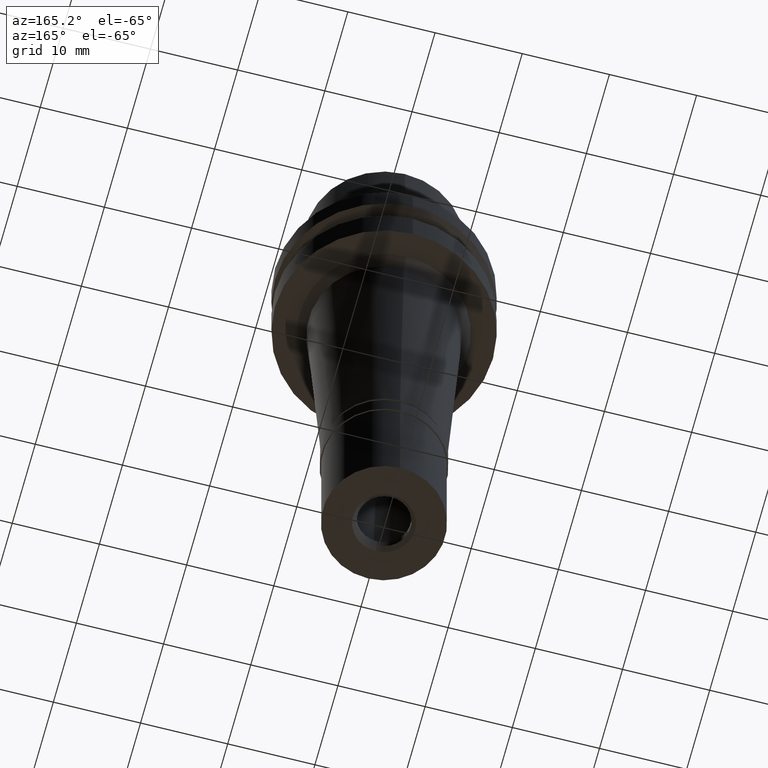
[diagram: clean part render]
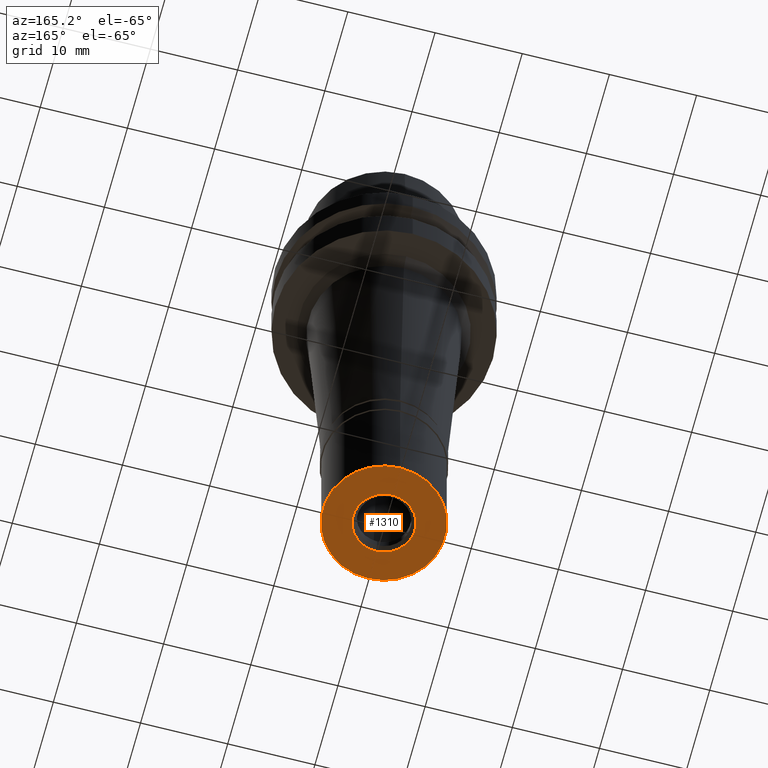
[diagram: same view with one face highlighted and labeled with its STEP entity id]
A machine part, auxiliary view. The second image highlights one B-rep face of the part: STEP entity #1310.
In plain terms, the highlighted planar face has unit normal (0, 0, 1).
Its self-contained STEP definition (entity closure, byte-faithful):
#219 = ORIENTED_EDGE ( 'NONE', *, *, #1389, .F. ) ;
#318 = EDGE_CURVE ( 'NONE', #2664, #1196, #1881, .T. ) ;
#339 = DIRECTION ( 'NONE',  ( 0.0000000000000000000, 0.0000000000000000000, -1.000000000000000000 ) ) ;
#437 = ORIENTED_EDGE ( 'NONE', *, *, #1456, .F. ) ;
#508 = DIRECTION ( 'NONE',  ( 0.0000000000000000000, 0.0000000000000000000, 1.000000000000000000 ) ) ;
#535 = DIRECTION ( 'NONE',  ( 0.0000000000000000000, 1.000000000000000000, 0.0000000000000000000 ) ) ;
#580 = EDGE_LOOP ( 'NONE', ( #2237, #1801 ) ) ;
#605 = VERTEX_POINT ( 'NONE', #1336 ) ;
#628 = CARTESIAN_POINT ( 'NONE',  ( 0.0000000000000000000, 0.0000000000000000000, -17.00000000000000000 ) ) ;
#748 = CARTESIAN_POINT ( 'NONE',  ( 0.0000000000000000000, 0.0000000000000000000, -17.00000000000000000 ) ) ;
#836 = AXIS2_PLACEMENT_3D ( 'NONE', #2219, #339, #1170 ) ;
#874 = CARTESIAN_POINT ( 'NONE',  ( 0.0000000000000000000, 3.550000000000000266, -17.00000000000000000 ) ) ;
#970 = CIRCLE ( 'NONE', #1327, 7.000000000000000000 ) ;
#1145 = CARTESIAN_POINT ( 'NONE',  ( 0.0000000000000000000, 0.0000000000000000000, -17.00000000000000000 ) ) ;
#1170 = DIRECTION ( 'NONE',  ( 0.0000000000000000000, -1.000000000000000000, 0.0000000000000000000 ) ) ;
#1187 = CARTESIAN_POINT ( 'NONE',  ( 0.0000000000000000000, -3.550000000000000266, -17.00000000000000000 ) ) ;
#1196 = VERTEX_POINT ( 'NONE', #874 ) ;
#1283 = AXIS2_PLACEMENT_3D ( 'NONE', #748, #508, #535 ) ;
#1310 = ADVANCED_FACE ( 'NONE', ( #2160, #2606 ), #1325, .F. ) ;
#1325 = PLANE ( 'NONE',  #1983 ) ;
#1327 = AXIS2_PLACEMENT_3D ( 'NONE', #1145, #1556, #2593 ) ;
#1336 = CARTESIAN_POINT ( 'NONE',  ( 0.0000000000000000000, 7.000000000000000000, -17.00000000000000000 ) ) ;
#1354 = DIRECTION ( 'NONE',  ( 0.0000000000000000000, 0.0000000000000000000, 1.000000000000000000 ) ) ;
#1378 = CIRCLE ( 'NONE', #2211, 3.550000000000000266 ) ;
#1389 = EDGE_CURVE ( 'NONE', #1607, #605, #970, .T. ) ;
#1456 = EDGE_CURVE ( 'NONE', #605, #1607, #2679, .T. ) ;
#1520 = EDGE_LOOP ( 'NONE', ( #437, #219 ) ) ;
#1556 = DIRECTION ( 'NONE',  ( 0.0000000000000000000, 0.0000000000000000000, 1.000000000000000000 ) ) ;
#1607 = VERTEX_POINT ( 'NONE', #1908 ) ;
#1801 = ORIENTED_EDGE ( 'NONE', *, *, #318, .F. ) ;
#1881 = CIRCLE ( 'NONE', #836, 3.550000000000000266 ) ;
#1908 = CARTESIAN_POINT ( 'NONE',  ( 0.0000000000000000000, -7.000000000000000000, -17.00000000000000000 ) ) ;
#1967 = CARTESIAN_POINT ( 'NONE',  ( 0.0000000000000000000, 0.0000000000000000000, -17.00000000000000000 ) ) ;
#1981 = DIRECTION ( 'NONE',  ( 1.000000000000000000, 0.0000000000000000000, 0.0000000000000000000 ) ) ;
#1983 = AXIS2_PLACEMENT_3D ( 'NONE', #1967, #1354, #1981 ) ;
#2084 = DIRECTION ( 'NONE',  ( 0.0000000000000000000, 1.000000000000000000, 0.0000000000000000000 ) ) ;
#2110 = DIRECTION ( 'NONE',  ( 0.0000000000000000000, 0.0000000000000000000, -1.000000000000000000 ) ) ;
#2160 = FACE_OUTER_BOUND ( 'NONE', #1520, .T. ) ;
#2211 = AXIS2_PLACEMENT_3D ( 'NONE', #628, #2110, #2084 ) ;
#2217 = EDGE_CURVE ( 'NONE', #1196, #2664, #1378, .T. ) ;
#2219 = CARTESIAN_POINT ( 'NONE',  ( 0.0000000000000000000, 0.0000000000000000000, -17.00000000000000000 ) ) ;
#2237 = ORIENTED_EDGE ( 'NONE', *, *, #2217, .F. ) ;
#2593 = DIRECTION ( 'NONE',  ( 0.0000000000000000000, -1.000000000000000000, 0.0000000000000000000 ) ) ;
#2606 = FACE_BOUND ( 'NONE', #580, .T. ) ;
#2664 = VERTEX_POINT ( 'NONE', #1187 ) ;
#2679 = CIRCLE ( 'NONE', #1283, 7.000000000000000000 ) ;